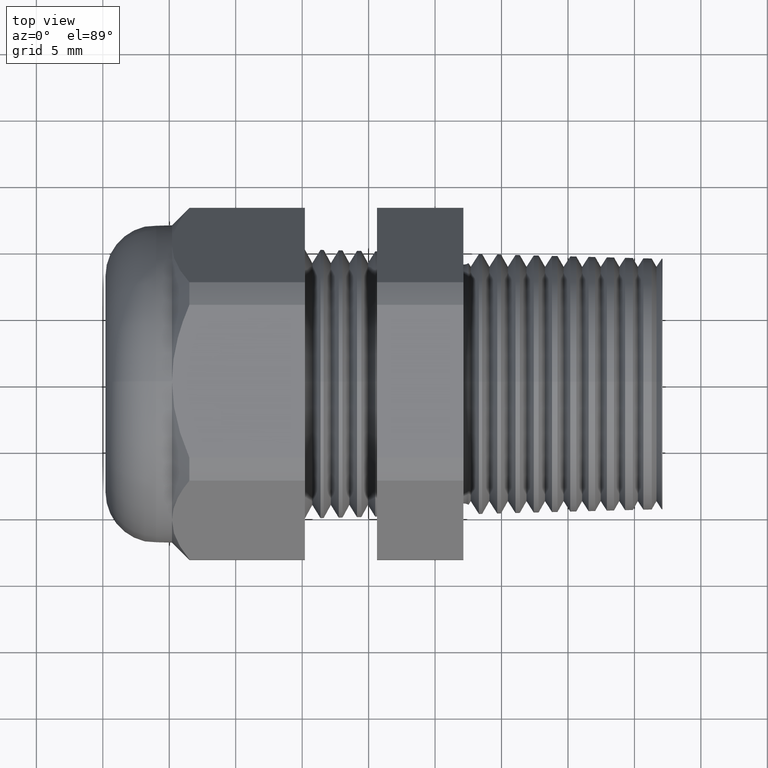
[diagram: clean part render]
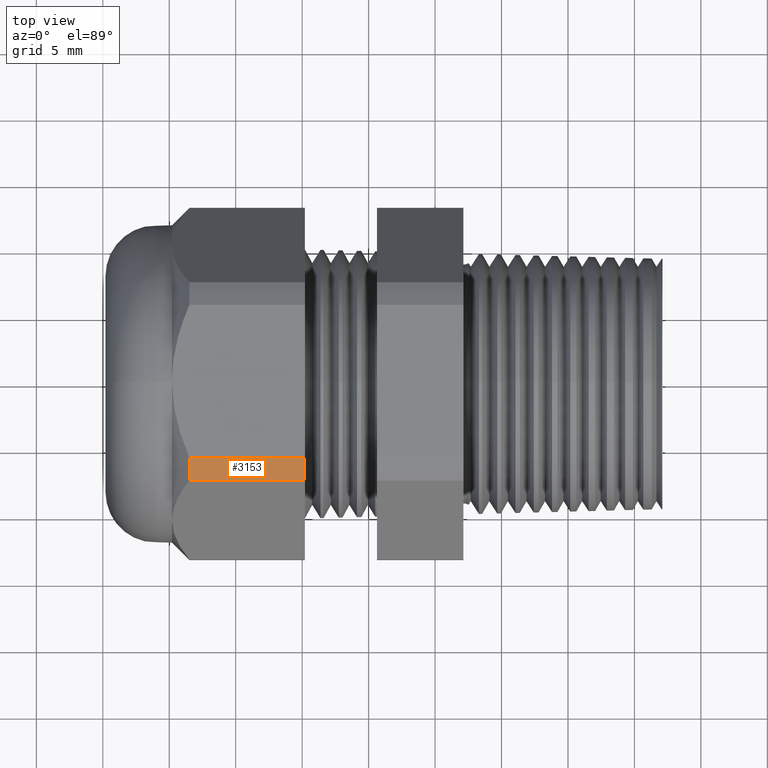
[diagram: same view with one face highlighted and labeled with its STEP entity id]
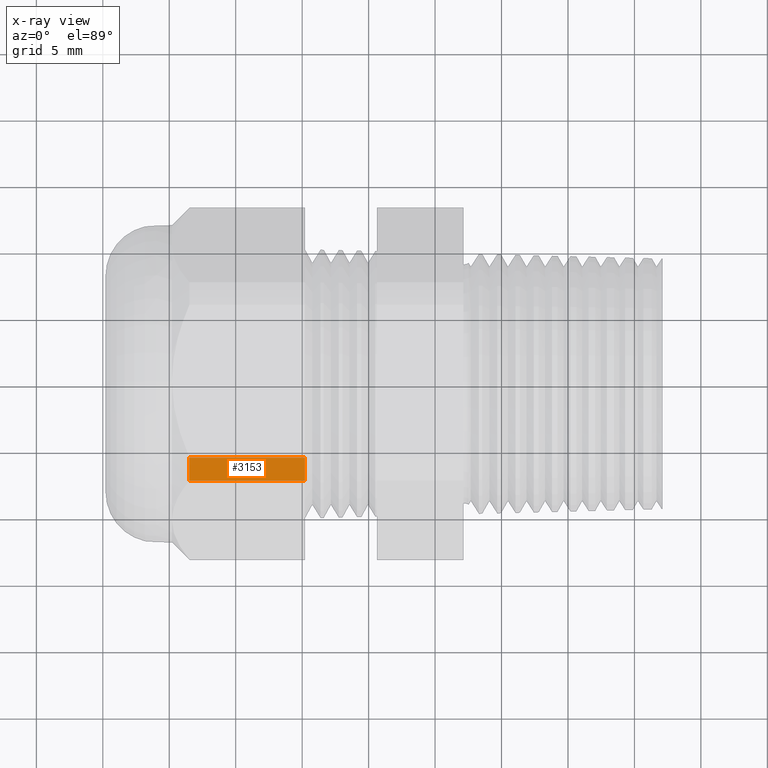
[diagram: x-ray of the same camera — body ghosted, the highlighted face saturated]
A machine part, top view. The second image highlights one B-rep face of the part: STEP entity #3153.
The next image is the same camera in x-ray: the body ghosted, the highlighted face saturated — about 0% of this face is hidden behind the body in this view.
In plain terms, the highlighted cylindrical surface (partial cylindrical patch) has radius 13.2512 mm, axis along (-1, 0, 0).
Its self-contained STEP definition (entity closure, byte-faithful):
#2982 = VERTEX_POINT ( 'NONE', #3452 ) ;
#3109 = EDGE_CURVE ( 'NONE', #2982, #3111, #3615, .T. ) ;
#3111 = VERTEX_POINT ( 'NONE', #3663 ) ;
#3133 = EDGE_CURVE ( 'NONE', #2982, #3138, #3676, .T. ) ;
#3135 = ORIENTED_EDGE ( 'NONE', *, *, #3133, .F. ) ;
#3138 = VERTEX_POINT ( 'NONE', #3731 ) ;
#3139 = VERTEX_POINT ( 'NONE', #3730 ) ;
#3141 = ORIENTED_EDGE ( 'NONE', *, *, #3142, .F. ) ;
#3142 = EDGE_CURVE ( 'NONE', #3138, #3139, #3729, .T. ) ;
#3143 = EDGE_CURVE ( 'NONE', #3111, #3139, #3725, .T. ) ;
#3146 = ORIENTED_EDGE ( 'NONE', *, *, #3143, .T. ) ;
#3148 = ORIENTED_EDGE ( 'NONE', *, *, #3109, .T. ) ;
#3152 = EDGE_LOOP ( 'NONE', ( #3148, #3146, #3141, #3135 ) ) ;
#3153 = ADVANCED_FACE ( 'NONE', ( #3769 ), #3768, .T. ) ;
#3452 = CARTESIAN_POINT ( 'NONE',  ( -0.7794488188976376200, -0.2264307620443835600, 0.4699999999999997500 ) ) ;
#3615 = LINE ( 'NONE', #3666, #3665 ) ;
#3663 = CARTESIAN_POINT ( 'NONE',  ( -1.121449606299212300, -0.2264307620443835900, 0.4699999999999999200 ) ) ;
#3664 = DIRECTION ( 'NONE',  ( -1.000000000000000000, 0.0000000000000000000, 0.0000000000000000000 ) ) ;
#3665 = VECTOR ( 'NONE', #3664, 39.37007874015748100 ) ;
#3666 = CARTESIAN_POINT ( 'NONE',  ( 0.2800000000000000300, -0.2264307620443835600, 0.4699999999999997500 ) ) ;
#3671 = AXIS2_PLACEMENT_3D ( 'NONE', #3738, #3737, #3736 ) ;
#3676 = CIRCLE ( 'NONE', #3671, 0.5217000000000000500 ) ;
#3706 = CARTESIAN_POINT ( 'NONE',  ( 0.2800000000000000300, 0.0000000000000000000, 0.0000000000000000000 ) ) ;
#3721 = DIRECTION ( 'NONE',  ( 0.0000000000000000000, 0.0000000000000000000, -1.000000000000000000 ) ) ;
#3722 = DIRECTION ( 'NONE',  ( 1.000000000000000000, 0.0000000000000000000, 0.0000000000000000000 ) ) ;
#3723 = CARTESIAN_POINT ( 'NONE',  ( -1.121449606299212300, 0.0000000000000000000, 0.0000000000000000000 ) ) ;
#3724 = AXIS2_PLACEMENT_3D ( 'NONE', #3723, #3722, #3721 ) ;
#3725 = CIRCLE ( 'NONE', #3724, 0.5217000000000000500 ) ;
#3726 = DIRECTION ( 'NONE',  ( -1.000000000000000000, 0.0000000000000000000, 0.0000000000000000000 ) ) ;
#3727 = VECTOR ( 'NONE', #3726, 39.37007874015748100 ) ;
#3728 = CARTESIAN_POINT ( 'NONE',  ( 0.2800000000000000300, -0.2938165587564948700, 0.4310947921287048800 ) ) ;
#3729 = LINE ( 'NONE', #3728, #3727 ) ;
#3730 = CARTESIAN_POINT ( 'NONE',  ( -1.121449606299212300, -0.2938165587564948700, 0.4310947921287048800 ) ) ;
#3731 = CARTESIAN_POINT ( 'NONE',  ( -0.7794488188976376200, -0.2938165587564948700, 0.4310947921287048800 ) ) ;
#3736 = DIRECTION ( 'NONE',  ( 0.0000000000000000000, 0.0000000000000000000, -1.000000000000000000 ) ) ;
#3737 = DIRECTION ( 'NONE',  ( 1.000000000000000000, 0.0000000000000000000, 0.0000000000000000000 ) ) ;
#3738 = CARTESIAN_POINT ( 'NONE',  ( -0.7794488188976376200, 0.0000000000000000000, 0.0000000000000000000 ) ) ;
#3764 = DIRECTION ( 'NONE',  ( 0.0000000000000000000, 0.0000000000000000000, 1.000000000000000000 ) ) ;
#3765 = DIRECTION ( 'NONE',  ( -1.000000000000000000, 0.0000000000000000000, 0.0000000000000000000 ) ) ;
#3766 = AXIS2_PLACEMENT_3D ( 'NONE', #3706, #3765, #3764 ) ;
#3768 = CYLINDRICAL_SURFACE ( 'NONE', #3766, 0.5217000000000000500 ) ;
#3769 = FACE_OUTER_BOUND ( 'NONE', #3152, .T. ) ;